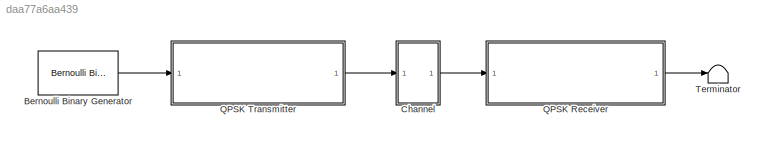
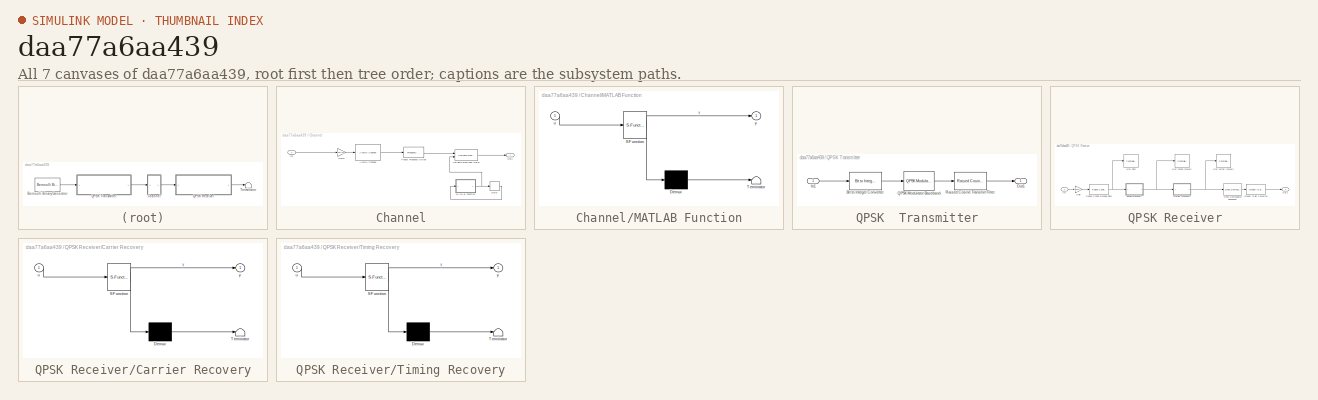
[diagram: thumbnail index - all 7 canvases of the model, root first then tree order]
MODEL slx_daa77a6aa439
KIND model
CONFIG AbsTol = auto
CONFIG EnableMultiTasking = off
CONFIG FixedStep = auto
CONFIG InitFcn = QPSK_ini
CONFIG MaxStep = auto
CONFIG MinStep = auto
CONFIG RelTol = 1e-3
CONFIG SampleTimeConstraint = Unconstrained
CONFIG Solver = VariableStepAuto
CONFIG SolverName = VariableStepAuto
CONFIG StartTime = 0.0
CONFIG StopTime = inf
BLOCK [Reference] Bernoulli Binary Generator  REF=commrandsrc3/Bernoulli Binary
Generator
  Ports = [0, 1]
  SourceBlock = commrandsrc3/Bernoulli Binary\nGenerator
  SourceProductBaseCode = CM
  SourceProductName = Communications Toolbox
  SourceType = Bernoulli Binary Generator
BLOCK [SubSystem] Channel
  Ports = [1, 1]
  RequestExecContextInheritance = off
BLOCK [Reference] Channel/AWGN Channel  REF=commchan3/AWGN
Channel
  Ports = [1, 1]
  SourceBlock = commchan3/AWGN\nChannel
  SourceProductBaseCode = CM
  SourceProductName = Communications Toolbox
  SourceType = AWGN Channel
  UserDataPersistent = on
BLOCK [Delay] Channel/Delay
  DelayLength = 1
  InputPortMap = u0
  Ports = [1, 1]
BLOCK [Gain] Channel/Gain1
  Gain = sqrt(8)
  OutDataTypeStr = Inherit: Inherit via internal rule
  ParamDataTypeStr = Inherit: Inherit via internal rule
  SaturateOnIntegerOverflow = off
BLOCK [Inport] Channel/In1
  IconDisplay = Port number
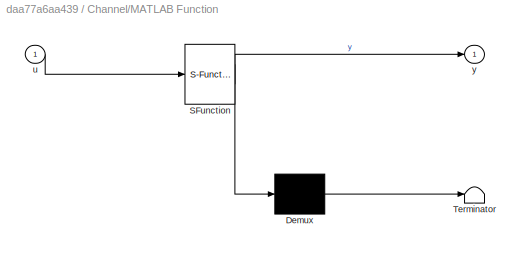
BLOCK [SubSystem] Channel/MATLAB Function
  ErrorFcn = Stateflow.Translate.translate
  PermitHierarchicalResolution = ExplicitOnly
  Ports = [1, 1]
  RequestExecContextInheritance = off
  SFBlockType = MATLAB Function
  TreatAsAtomicUnit = on
BLOCK [Demux] Channel/MATLAB Function/ Demux 
  Outputs = 1
  Ports = [1, 1]
BLOCK [S-Function] Channel/MATLAB Function/ SFunction 
  EnableBusSupport = on
  FunctionName = sf_sfun
  PortCounts = [1 2]
  Ports = [1, 2]
  SFcnIsStateOwnerBlock = off
  SFunctionDeploymentMode = off
  Tag = Stateflow S-Function QPSK_Lecture11 2
BLOCK [Terminator] Channel/MATLAB Function/ Terminator 
BLOCK [Inport] Channel/MATLAB Function/u
  IconDisplay = Port number
BLOCK [Outport] Channel/MATLAB Function/y
  IconDisplay = Port number
BLOCK [Outport] Channel/Out1
  IconDisplay = Port number
BLOCK [Reference] Channel/Phase// Frequency Offset  REF=commrflib2/Phase//
Frequency
Offset
  Ports = [1, 1]
  SourceBlock = commrflib2/Phase//\nFrequency\nOffset
  SourceProductBaseCode = CM
  SourceProductName = Communications System Toolbox
  SourceType = Phase/Frequency Offset
BLOCK [Reference] Channel/Variable Fractional Delay  REF=dspsigops/Variable
Fractional Delay
  Ports = [2, 1]
  SourceBlock = dspsigops/Variable\nFractional Delay
  SourceProductBaseCode = DS
  SourceProductName = DSP System Toolbox
  SourceType = Variable Fractional Delay
  UserDataPersistent = on
BLOCK [SubSystem] QPSK  Transmitter
  Ports = [1, 1]
  RequestExecContextInheritance = off
BLOCK [Reference] QPSK  Transmitter/Bit to Integer Converter  REF=commutil2/Bit to Integer
Converter
  Ports = [1, 1]
  SourceBlock = commutil2/Bit to Integer\nConverter
  SourceProductBaseCode = CM
  SourceProductName = Communications Toolbox
  SourceType = Bit to Integer Converter
BLOCK [Inport] QPSK  Transmitter/In1
  IconDisplay = Port number
BLOCK [Outport] QPSK  Transmitter/Out1
  IconDisplay = Port number
BLOCK [Reference] QPSK  Transmitter/QPSK Modulator Baseband  REF=commdigbbndpm3/QPSK
Modulator
Baseband
  Ports = [1, 1]
  SourceBlock = commdigbbndpm3/QPSK\nModulator\nBaseband
  SourceProductBaseCode = CM
  SourceProductName = Communications Toolbox
  SourceType = QPSK Modulator Baseband
BLOCK [Reference] QPSK  Transmitter/Raised Cosine Transmit Filter  REF=commfilt2/Raised Cosine
Transmit Filter
  Ports = [1, 1]
  SourceBlock = commfilt2/Raised Cosine\nTransmit Filter
  SourceProductBaseCode = CM
  SourceProductName = Communications Toolbox
  SourceType = Raised Cosine Transmit Filter
  UserDataPersistent = on
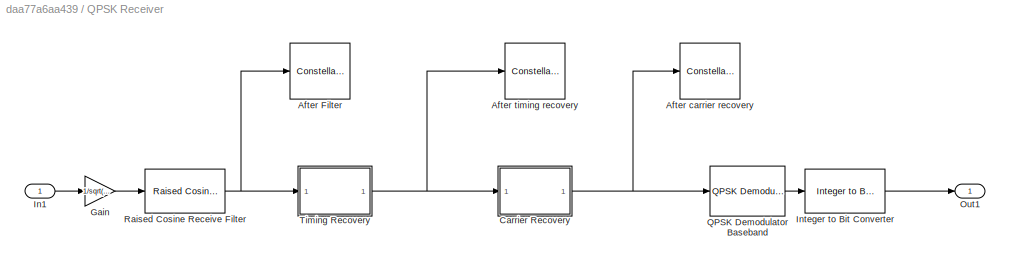
BLOCK [SubSystem] QPSK Receiver
  Ports = [1, 1]
  RequestExecContextInheritance = off
BLOCK [ConstellationDiagram] QPSK Receiver/After Filter
  Ports = [1]
  ScopeSpecificationString = comm.scopes.ConstellationDiagramBlockCfg('CurrentConfiguration', extmgr.ConfigurationSet(extmgr.Configuration('Core','General UI',true),extmgr.Configuration('Core','Source UI',true),extmgr.Configuration('Sources','WiredSimulink',true),extmgr.Configuration('Sources','SimulinkEvent',false),extmgr.Configuration('Sources','Simulink',false),extmgr.Configuration('Sources','File',false),extmgr.Configurat...<+2285ch>
BLOCK [ConstellationDiagram] QPSK Receiver/After carrier recovery
  Ports = [1]
  ScopeSpecificationString = comm.scopes.ConstellationDiagramBlockCfg('CurrentConfiguration', extmgr.ConfigurationSet(extmgr.Configuration('Core','General UI',true),extmgr.Configuration('Core','Source UI',true),extmgr.Configuration('Sources','WiredSimulink',true),extmgr.Configuration('Sources','SimulinkEvent',false),extmgr.Configuration('Sources','Simulink',false),extmgr.Configuration('Sources','File',false),extmgr.Configurat...<+2264ch>
BLOCK [ConstellationDiagram] QPSK Receiver/After timing recovery 
  Ports = [1]
  ScopeSpecificationString = comm.scopes.ConstellationDiagramBlockCfg('CurrentConfiguration', extmgr.ConfigurationSet(extmgr.Configuration('Core','General UI',true),extmgr.Configuration('Core','Source UI',true),extmgr.Configuration('Sources','WiredSimulink',true),extmgr.Configuration('Sources','SimulinkEvent',false),extmgr.Configuration('Sources','Simulink',false),extmgr.Configuration('Sources','File',false),extmgr.Configurat...<+2264ch>
BLOCK [SubSystem] QPSK Receiver/Carrier Recovery
  ErrorFcn = Stateflow.Translate.translate
  PermitHierarchicalResolution = ExplicitOnly
  Ports = [1, 1]
  RequestExecContextInheritance = off
  SFBlockType = MATLAB Function
  TreatAsAtomicUnit = on
BLOCK [Demux] QPSK Receiver/Carrier Recovery/ Demux 
  Outputs = 1
  Ports = [1, 1]
BLOCK [S-Function] QPSK Receiver/Carrier Recovery/ SFunction 
  EnableBusSupport = on
  FunctionName = sf_sfun
  PortCounts = [1 2]
  Ports = [1, 2]
  SFcnIsStateOwnerBlock = off
  SFunctionDeploymentMode = off
  Tag = Stateflow S-Function QPSK_Lecture11 3
BLOCK [Terminator] QPSK Receiver/Carrier Recovery/ Terminator 
BLOCK [Inport] QPSK Receiver/Carrier Recovery/u
  IconDisplay = Port number
BLOCK [Outport] QPSK Receiver/Carrier Recovery/y
  IconDisplay = Port number
BLOCK [Gain] QPSK Receiver/Gain
  Gain = 1/sqrt(8)
  OutDataTypeStr = Inherit: Inherit via internal rule
  ParamDataTypeStr = Inherit: Inherit via internal rule
  SaturateOnIntegerOverflow = off
BLOCK [Inport] QPSK Receiver/In1
  IconDisplay = Port number
BLOCK [Reference] QPSK Receiver/Integer to Bit Converter  REF=commutil2/Integer to Bit
Converter
  Ports = [1, 1]
  SourceBlock = commutil2/Integer to Bit\nConverter
  SourceProductBaseCode = CM
  SourceProductName = Communications Toolbox
  SourceType = Integer to Bit Converter
BLOCK [Outport] QPSK Receiver/Out1
  IconDisplay = Port number
BLOCK [Reference] QPSK Receiver/QPSK Demodulator Baseband  REF=commdigbbndpm3/QPSK
Demodulator
Baseband
  Ports = [1, 1]
  SourceBlock = commdigbbndpm3/QPSK\nDemodulator\nBaseband
  SourceProductBaseCode = CM
  SourceProductName = Communications Toolbox
  SourceType = QPSK Demodulator Baseband
BLOCK [Reference] QPSK Receiver/Raised Cosine Receive Filter  REF=commfilt2/Raised Cosine
Receive Filter
  Ports = [1, 1]
  SourceBlock = commfilt2/Raised Cosine\nReceive Filter
  SourceProductBaseCode = CM
  SourceProductName = Communications Toolbox
  SourceType = Raised Cosine Receive Filter
  UserDataPersistent = on
BLOCK [SubSystem] QPSK Receiver/Timing Recovery
  ErrorFcn = Stateflow.Translate.translate
  PermitHierarchicalResolution = ExplicitOnly
  Ports = [1, 1]
  RequestExecContextInheritance = off
  SFBlockType = MATLAB Function
  TreatAsAtomicUnit = on
BLOCK [Demux] QPSK Receiver/Timing Recovery/ Demux 
  Outputs = 1
  Ports = [1, 1]
BLOCK [S-Function] QPSK Receiver/Timing Recovery/ SFunction 
  EnableBusSupport = on
  FunctionName = sf_sfun
  PortCounts = [1 2]
  Ports = [1, 2]
  SFcnIsStateOwnerBlock = off
  SFunctionDeploymentMode = off
  Tag = Stateflow S-Function QPSK_Lecture11 1
BLOCK [Terminator] QPSK Receiver/Timing Recovery/ Terminator 
BLOCK [Inport] QPSK Receiver/Timing Recovery/u
  IconDisplay = Port number
BLOCK [Outport] QPSK Receiver/Timing Recovery/y
  IconDisplay = Port number
BLOCK [Terminator] Terminator
LINE Bernoulli Binary Generator:1 -> QPSK  Transmitter:1
LINE Channel/AWGN Channel:1 -> Channel/Phase// Frequency Offset:1
LINE Channel/Delay:1 -> Channel/MATLAB Function:1
LINE Channel/Gain1:1 -> Channel/AWGN Channel:1
LINE Channel/In1:1 -> Channel/Gain1:1
NET Channel/MATLAB Function:1 -> Channel/Delay:1, Channel/Variable Fractional Delay:2
LINE Channel/Phase// Frequency Offset:1 -> Channel/Variable Fractional Delay:1
LINE Channel/Variable Fractional Delay:1 -> Channel/Out1:1
LINE Channel:1 -> QPSK Receiver:1
LINE QPSK  Transmitter/Bit to Integer Converter:1 -> QPSK  Transmitter/QPSK Modulator Baseband:1
LINE QPSK  Transmitter/In1:1 -> QPSK  Transmitter/Bit to Integer Converter:1
LINE QPSK  Transmitter/QPSK Modulator Baseband:1 -> QPSK  Transmitter/Raised Cosine Transmit Filter:1
LINE QPSK  Transmitter/Raised Cosine Transmit Filter:1 -> QPSK  Transmitter/Out1:1
LINE QPSK  Transmitter:1 -> Channel:1
NET QPSK Receiver/Carrier Recovery:1 -> QPSK Receiver/After carrier recovery:1, QPSK Receiver/QPSK Demodulator Baseband:1
LINE QPSK Receiver/Gain:1 -> QPSK Receiver/Raised Cosine Receive Filter:1
LINE QPSK Receiver/In1:1 -> QPSK Receiver/Gain:1
LINE QPSK Receiver/Integer to Bit Converter:1 -> QPSK Receiver/Out1:1
LINE QPSK Receiver/QPSK Demodulator Baseband:1 -> QPSK Receiver/Integer to Bit Converter:1
NET QPSK Receiver/Raised Cosine Receive Filter:1 -> QPSK Receiver/After Filter:1, QPSK Receiver/Timing Recovery:1
NET QPSK Receiver/Timing Recovery:1 -> QPSK Receiver/After timing recovery :1, QPSK Receiver/Carrier Recovery:1
LINE QPSK Receiver:1 -> Terminator:1
note: NET lines group one-source signal fan-out (src -> all destinations, sorted); 1:1 wires keep LINE
CHART QPSK Receiver/Timing Recovery states=1 transitions=1
  STATE_LABEL 'eML_blk_kernel()'
  STATE_LABEL 'SCRIPT:\nfunction y = fcn(u)\n\npersistent yva yvs\n\nif isempty(yva)\n    yva = zeros(4,1);\n    yvs = zeros(4,1);\nend\n\nd = length(u);\ny = complex(zeros(d/4,1));\nrho = 0.08;\nfor m=4:4:d\n    yva(1) = (1-rho)*(yva(1))+rho*abs(u(m-3));\n    yva(2) = (1-rho)*(yva(2))+rho*abs(u(m-2));\n    yva(3) = (1-rho)*(yva(3))+rho*abs(u(m-1));\n    yva(4) = (1-rho)*(yva(4))+rho*abs(u(m));\n    yvs(1) = (1-rho)*(yvs(1))+rho*...<+410ch>'
CHART Channel/MATLAB Function states=1 transitions=1
  STATE_LABEL 'eML_blk_kernel()'
  STATE_LABEL 'SCRIPT:\nfunction y = fcn(u)\n\ny = u + 0.001;\n'
CHART QPSK Receiver/Carrier Recovery states=1 transitions=1
  STATE_LABEL 'eML_blk_kernel()'
  STATE_LABEL 'SCRIPT:\nfunction y = fcn(u)\n\npersistent er era eri pha\nif(isempty(er))\n    er=0;\n    era=0;\n    eri=0;\n    pha=0;\nend\n\nd = length(u);\nyy = u;\nmu1 = 0.1;\nmu2 = 0.0001;\n\nfor k=1:d\n    yy(k) = yy(k)*exp(-1i*pha);\n    er = angle(yy(k)*(sign(real(yy(k)))-1i*sign(imag(yy(k)))));\n    eri = eri + er;\n    era = mu1 * er + mu2 * eri;\n    pha = pha + era;\n    if(pha > 2*pi)\n        pha = pha - 2*pi;\n    else...<+63ch>'
